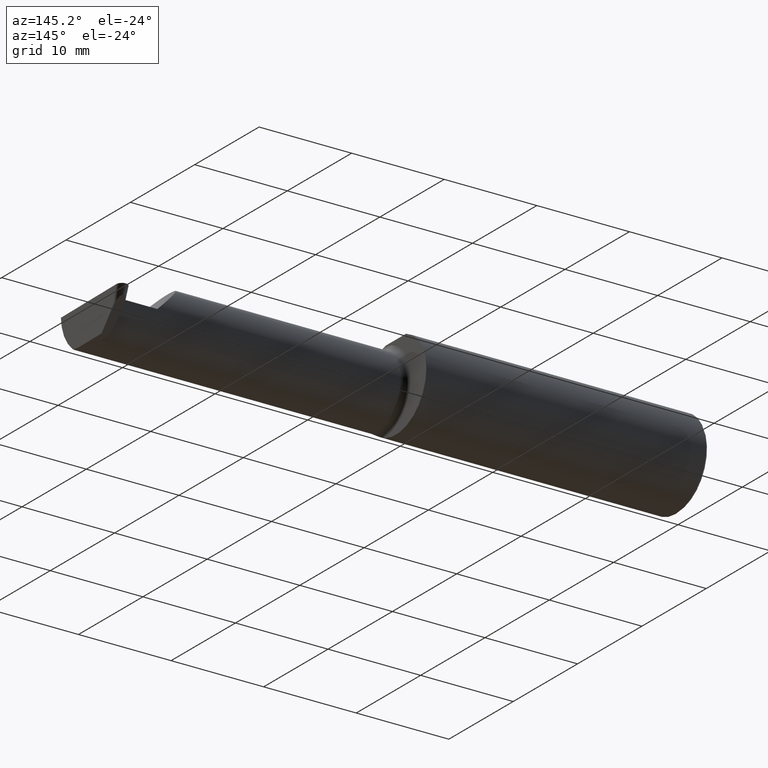
[diagram: clean part render]
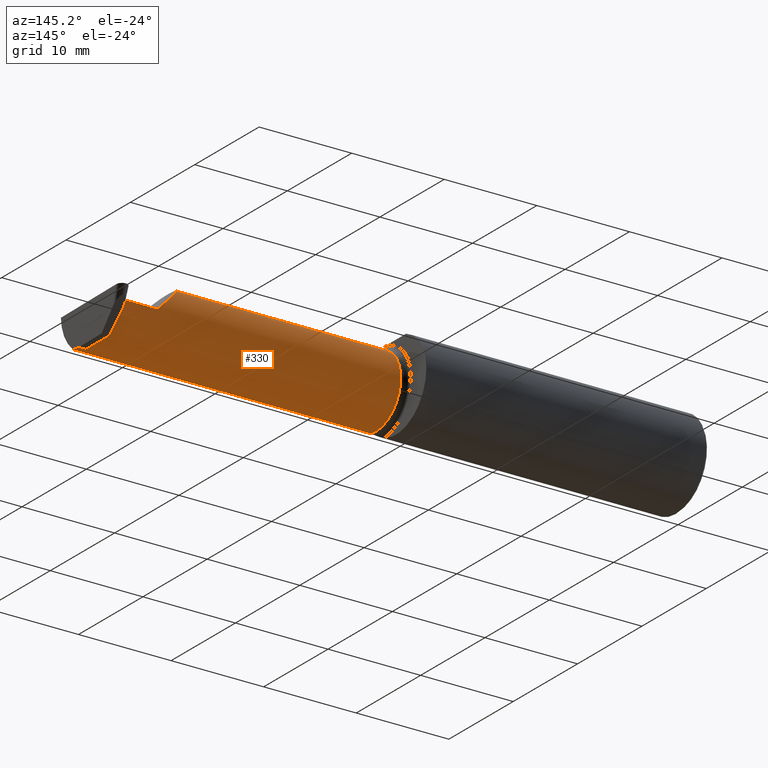
[diagram: same view with one face highlighted and labeled with its STEP entity id]
A machine part, auxiliary view. The second image highlights one B-rep face of the part: STEP entity #330.
In plain terms, the highlighted cylindrical surface (partial cylindrical patch) has radius 3.81 mm, axis along (-1, -0, -0).
Its self-contained STEP definition (entity closure, byte-faithful):
#4 = ORIENTED_EDGE ( 'NONE', *, *, #242, .T. ) ;
#14 = VERTEX_POINT ( 'NONE', #225 ) ;
#23 = ORIENTED_EDGE ( 'NONE', *, *, #410, .T. ) ;
#24 = CARTESIAN_POINT ( 'NONE',  ( 2.490297801769516539, -0.09477667630339420279, -0.1499999999999999667 ) ) ;
#25 = CARTESIAN_POINT ( 'NONE',  ( 2.447302279143278358, 0.06640640502598232908, -0.006975647374413146938 ) ) ;
#33 = CARTESIAN_POINT ( 'NONE',  ( 2.454977397848501219, 0.06628460753894979685, -0.01046347106162132459 ) ) ;
#38 = ORIENTED_EDGE ( 'NONE', *, *, #167, .F. ) ;
#41 = EDGE_CURVE ( 'NONE', #105, #420, #382, .T. ) ;
#44 = CARTESIAN_POINT ( 'NONE',  ( 1.199999999999999956, -0.08335000000000007681, 0.000000000000000000 ) ) ;
#57 = VECTOR ( 'NONE', #300, 39.37007874015748143 ) ;
#71 = CARTESIAN_POINT ( 'NONE',  ( 2.260000000000000231, 0.06664999999999991764, 1.592040838891559588E-16 ) ) ;
#82 = ORIENTED_EDGE ( 'NONE', *, *, #542, .T. ) ;
#84 = CARTESIAN_POINT ( 'NONE',  ( 2.490040979592266446, -0.1172600179964007061, -0.1461167706989302817 ) ) ;
#101 = CARTESIAN_POINT ( 'NONE',  ( 2.460115337567889249, -0.08334999999999999354, -0.1499999999999999944 ) ) ;
#103 = B_SPLINE_CURVE_WITH_KNOTS ( 'NONE', 3,
 ( #520, #25, #148, #692 ),
 .UNSPECIFIED., .F., .F.,
 ( 4, 4 ),
 ( 0.000000000000000000, 1.000000000000000000 ),
 .UNSPECIFIED. ) ;
#105 = VERTEX_POINT ( 'NONE', #229 ) ;
#146 = VERTEX_POINT ( 'NONE', #681 ) ;
#148 = CARTESIAN_POINT ( 'NONE',  ( 2.447424076630286827, 0.06652820251299113030, -0.003487823687206573469 ) ) ;
#150 = LINE ( 'NONE', #359, #176 ) ;
#155 = FACE_OUTER_BOUND ( 'NONE', #595, .T. ) ;
#161 = EDGE_CURVE ( 'NONE', #163, #105, #621, .T. ) ;
#162 = CARTESIAN_POINT ( 'NONE',  ( 2.447545874117295739, 0.06664999999999991764, 0.000000000000000000 ) ) ;
#163 = VERTEX_POINT ( 'NONE', #515 ) ;
#167 = EDGE_CURVE ( 'NONE', #672, #14, #307, .T. ) ;
#174 = DIRECTION ( 'NONE',  ( -1.000000000000000000, -0.000000000000000000, -0.000000000000000000 ) ) ;
#176 = VECTOR ( 'NONE', #583, 39.37007874015748143 ) ;
#194 = CARTESIAN_POINT ( 'NONE',  ( 2.260000000000000231, 0.06664999999999991764, 1.592040838891559588E-16 ) ) ;
#209 = DIRECTION ( 'NONE',  ( -1.000000000000000000, -6.813485650141123812E-17, -0.000000000000000000 ) ) ;
#213 = LINE ( 'NONE', #422, #651 ) ;
#225 = CARTESIAN_POINT ( 'NONE',  ( 2.447180481656269446, 0.06628460753897352786, -0.01046347106161971824 ) ) ;
#228 = DIRECTION ( 'NONE',  ( -1.000000000000000000, -6.813485650141123812E-17, -0.000000000000000000 ) ) ;
#229 = CARTESIAN_POINT ( 'NONE',  ( 2.490497255146305822, -0.08334999999999997966, -0.1500000000000000500 ) ) ;
#241 = LINE ( 'NONE', #256, #272 ) ;
#242 = EDGE_CURVE ( 'NONE', #163, #447, #150, .T. ) ;
#255 = CARTESIAN_POINT ( 'NONE',  ( 2.457926070388992468, 0.06048930266824071450, -0.09334019187383278682 ) ) ;
#256 = CARTESIAN_POINT ( 'NONE',  ( 1.199999999999999956, 0.06664999999999984825, 1.592040838891559588E-16 ) ) ;
#259 = ORIENTED_EDGE ( 'NONE', *, *, #386, .F. ) ;
#261 = CARTESIAN_POINT ( 'NONE',  ( 2.113883229301068312, -0.1172600179964008726, 0.1461167706989301429 ) ) ;
#269 =( BOUNDED_CURVE ( )  B_SPLINE_CURVE ( 3, ( #372, #603, #255, #475 ),
 .UNSPECIFIED., .F., .F. ) 
 B_SPLINE_CURVE_WITH_KNOTS ( ( 4, 4 ),
 ( 3.176499238629677535, 4.677482395344773280 ),
 .UNSPECIFIED. ) 
 CURVE ( )  GEOMETRIC_REPRESENTATION_ITEM ( )  RATIONAL_B_SPLINE_CURVE ( ( 1.000000000000000000, 0.8209024677461199682, 0.8209024677461199682, 1.000000000000000000 ) ) 
 REPRESENTATION_ITEM ( '' )  );
#272 = VECTOR ( 'NONE', #459, 39.37007874015748143 ) ;
#282 = VERTEX_POINT ( 'NONE', #261 ) ;
#290 = VECTOR ( 'NONE', #174, 39.37007874015748143 ) ;
#295 = CARTESIAN_POINT ( 'NONE',  ( 1.199999999999998623, 0.06628460753894953317, -0.01046347106196185428 ) ) ;
#300 = DIRECTION ( 'NONE',  ( -1.000000000000000000, -6.813485650141123812E-17, -0.000000000000000000 ) ) ;
#307 = LINE ( 'NONE', #295, #57 ) ;
#330 = ADVANCED_FACE ( 'NONE', ( #155 ), #656, .T. ) ;
#333 = AXIS2_PLACEMENT_3D ( 'NONE', #703, #209, #419 ) ;
#341 = CARTESIAN_POINT ( 'NONE',  ( 2.155331797197863608, 0.06664999999999991764, 0.1046682028021361927 ) ) ;
#342 = ORIENTED_EDGE ( 'NONE', *, *, #41, .F. ) ;
#359 = CARTESIAN_POINT ( 'NONE',  ( 1.838979999999999837, -0.1172600179964007477, -0.1461167706989302817 ) ) ;
#367 = DIRECTION ( 'NONE',  ( 1.000000000000000000, 6.813485650141123812E-17, 0.000000000000000000 ) ) ;
#372 = CARTESIAN_POINT ( 'NONE',  ( 2.460115337567889249, -0.08334999999999999354, -0.1499999999999999944 ) ) ;
#374 = AXIS2_PLACEMENT_3D ( 'NONE', #44, #228, #440 ) ;
#378 = VERTEX_POINT ( 'NONE', #162 ) ;
#382 = LINE ( 'NONE', #385, #290 ) ;
#385 = CARTESIAN_POINT ( 'NONE',  ( 2.733184360054361939, -0.08334999999999997966, -0.1500000000000000500 ) ) ;
#386 = EDGE_CURVE ( 'NONE', #420, #672, #269, .T. ) ;
#392 = CIRCLE ( 'NONE', #333, 0.1499999999999999112 ) ;
#405 = ORIENTED_EDGE ( 'NONE', *, *, #590, .T. ) ;
#410 = EDGE_CURVE ( 'NONE', #146, #282, #213, .T. ) ;
#414 = CARTESIAN_POINT ( 'NONE',  ( 2.090221225029925911, -0.01530148607434188811, 0.1697787749700727378 ) ) ;
#419 = DIRECTION ( 'NONE',  ( 0.000000000000000000, -1.000000000000000000, 0.000000000000000000 ) ) ;
#420 = VERTEX_POINT ( 'NONE', #101 ) ;
#422 = CARTESIAN_POINT ( 'NONE',  ( 1.838979999999999837, -0.1172600179964007477, 0.1461167706989302817 ) ) ;
#440 = DIRECTION ( 'NONE',  ( 0.000000000000000000, -1.000000000000000000, 0.000000000000000000 ) ) ;
#447 = VERTEX_POINT ( 'NONE', #585 ) ;
#459 = DIRECTION ( 'NONE',  ( 1.000000000000000000, 6.813485650141123812E-17, 0.000000000000000000 ) ) ;
#461 = CARTESIAN_POINT ( 'NONE',  ( 2.490145048687840479, -0.1061291577212409437, -0.1486999626928445506 ) ) ;
#468 = ORIENTED_EDGE ( 'NONE', *, *, #161, .F. ) ;
#475 = CARTESIAN_POINT ( 'NONE',  ( 2.454977397848501219, 0.06628460753894979685, -0.01046347106162132459 ) ) ;
#511 = CARTESIAN_POINT ( 'NONE',  ( 2.490497255146305822, -0.08334999999999997966, -0.1500000000000000500 ) ) ;
#515 = CARTESIAN_POINT ( 'NONE',  ( 2.490040979592266446, -0.1172600179964007061, -0.1461167706989302817 ) ) ;
#520 = CARTESIAN_POINT ( 'NONE',  ( 2.447180481656269446, 0.06628460753897352786, -0.01046347106161971824 ) ) ;
#525 = VERTEX_POINT ( 'NONE', #194 ) ;
#542 = EDGE_CURVE ( 'NONE', #282, #525, #617, .T. ) ;
#547 = ORIENTED_EDGE ( 'NONE', *, *, #647, .F. ) ;
#565 = ORIENTED_EDGE ( 'NONE', *, *, #609, .F. ) ;
#583 = DIRECTION ( 'NONE',  ( -1.000000000000000000, -6.813485650141123812E-17, -0.000000000000000000 ) ) ;
#585 = CARTESIAN_POINT ( 'NONE',  ( 1.225000000000000089, -0.1172600179964008171, -0.1461167706989301984 ) ) ;
#590 = EDGE_CURVE ( 'NONE', #525, #378, #241, .T. ) ;
#595 = EDGE_LOOP ( 'NONE', ( #4, #547, #23, #82, #405, #565, #38, #259, #342, #468 ) ) ;
#603 = CARTESIAN_POINT ( 'NONE',  ( 2.460012367653796606, -0.0002709026822649672895, -0.1499999999999999667 ) ) ;
#609 = EDGE_CURVE ( 'NONE', #14, #378, #103, .T. ) ;
#617 =( BOUNDED_CURVE ( )  B_SPLINE_CURVE ( 3, ( #637, #414, #341, #71 ),
 .UNSPECIFIED., .F., .F. ) 
 B_SPLINE_CURVE_WITH_KNOTS ( ( 4, 4 ),
 ( 6.055147272130140479, 7.853981633974482790 ),
 .UNSPECIFIED. ) 
 CURVE ( )  GEOMETRIC_REPRESENTATION_ITEM ( )  RATIONAL_B_SPLINE_CURVE ( ( 1.000000000000000000, 0.7480442670255262883, 0.7480442670255262883, 1.000000000000000000 ) ) 
 REPRESENTATION_ITEM ( '' )  );
#621 =( BOUNDED_CURVE ( )  B_SPLINE_CURVE ( 3, ( #84, #461, #24, #511 ),
 .UNSPECIFIED., .F., .F. ) 
 B_SPLINE_CURVE_WITH_KNOTS ( ( 4, 4 ),
 ( 0.2354267821558766738, 0.4634648172053215109 ),
 .UNSPECIFIED. ) 
 CURVE ( )  GEOMETRIC_REPRESENTATION_ITEM ( )  RATIONAL_B_SPLINE_CURVE ( ( 1.000000000000000000, 0.9956712472009929815, 0.9956712472009929815, 1.000000000000000000 ) ) 
 REPRESENTATION_ITEM ( '' )  );
#637 = CARTESIAN_POINT ( 'NONE',  ( 2.113883229301068312, -0.1172600179964008726, 0.1461167706989301429 ) ) ;
#647 = EDGE_CURVE ( 'NONE', #146, #447, #392, .T. ) ;
#651 = VECTOR ( 'NONE', #367, 39.37007874015748143 ) ;
#656 = CYLINDRICAL_SURFACE ( 'NONE', #374, 0.1499999999999999667 ) ;
#672 = VERTEX_POINT ( 'NONE', #33 ) ;
#681 = CARTESIAN_POINT ( 'NONE',  ( 1.225000000000000089, -0.1172600179964007477, 0.1461167706989301984 ) ) ;
#692 = CARTESIAN_POINT ( 'NONE',  ( 2.447545874117295739, 0.06664999999999991764, 0.000000000000000000 ) ) ;
#703 = CARTESIAN_POINT ( 'NONE',  ( 1.225000000000000089, -0.08335000000000007681, 0.000000000000000000 ) ) ;